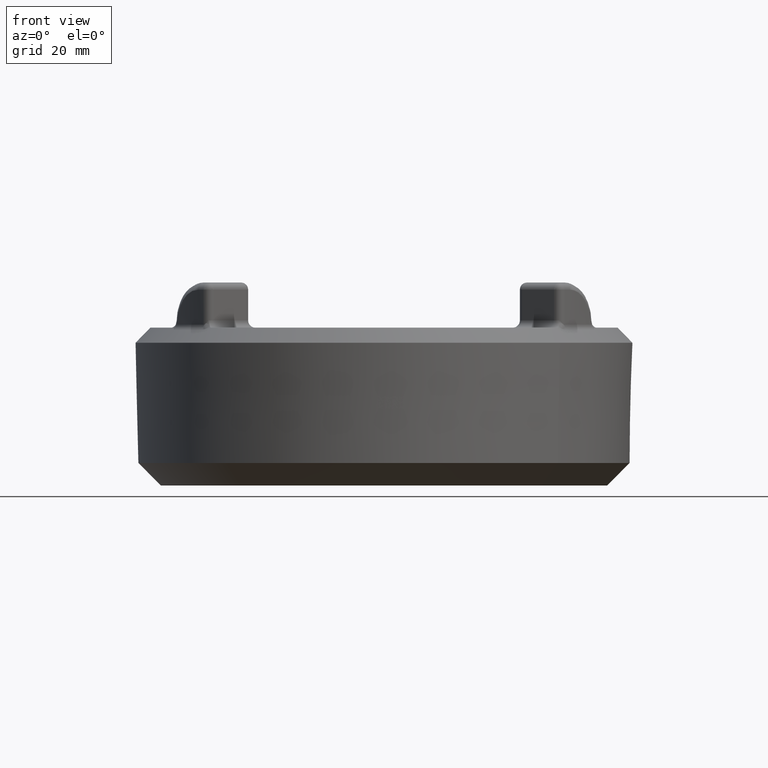
[diagram: clean part render]
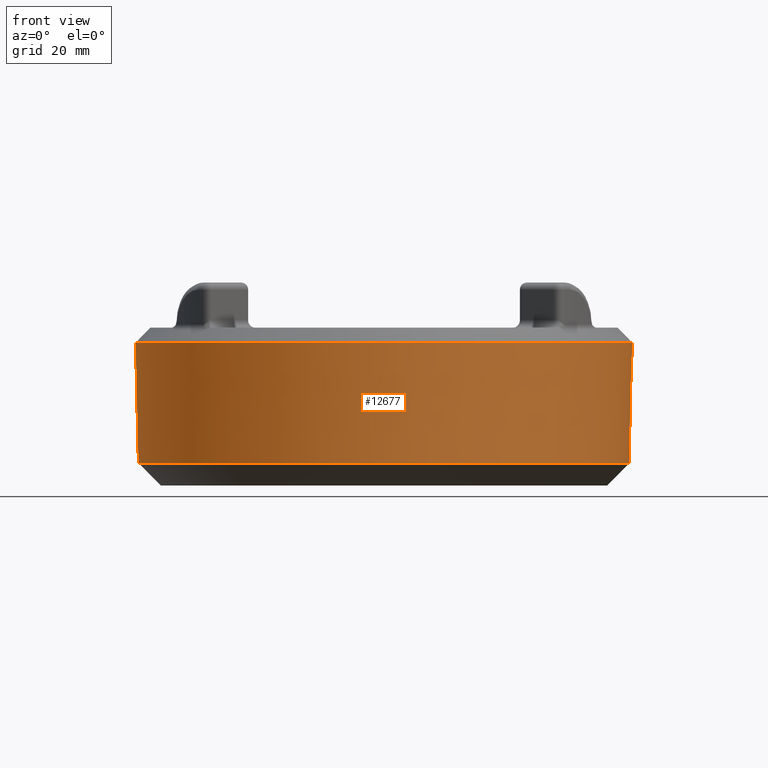
[diagram: same view with one face highlighted and labeled with its STEP entity id]
A machine part, front view. The second image highlights one B-rep face of the part: STEP entity #12677.
In plain terms, the highlighted conical surface has half-angle 1.346 deg.
Its self-contained STEP definition (entity closure, byte-faithful):
#270=CONICAL_SURFACE('',#13509,51.7921875,0.0234919181506614);
#1091=LINE('',#20475,#2456);
#2456=VECTOR('',#14725,51.7921875);
#3467=FACE_OUTER_BOUND('',#4301,.T.);
#4301=EDGE_LOOP('',(#8929,#8930,#8931,#8932,#8933,#8934));
#5124=CIRCLE('',#13503,52.3875);
#5125=CIRCLE('',#13504,52.3875);
#5130=CIRCLE('',#13510,51.7921875);
#5131=CIRCLE('',#13511,51.7921875);
#5765=VERTEX_POINT('',#20176);
#5766=VERTEX_POINT('',#20177);
#5783=VERTEX_POINT('',#20474);
#5784=VERTEX_POINT('',#20476);
#7009=EDGE_CURVE('',#5765,#5766,#5124,.T.);
#7010=EDGE_CURVE('',#5766,#5765,#5125,.T.);
#7032=EDGE_CURVE('',#5766,#5783,#1091,.T.);
#7033=EDGE_CURVE('',#5783,#5784,#5130,.T.);
#7034=EDGE_CURVE('',#5784,#5783,#5131,.T.);
#8929=ORIENTED_EDGE('',*,*,#7009,.F.);
#8930=ORIENTED_EDGE('',*,*,#7010,.F.);
#8931=ORIENTED_EDGE('',*,*,#7032,.T.);
#8932=ORIENTED_EDGE('',*,*,#7033,.T.);
#8933=ORIENTED_EDGE('',*,*,#7034,.T.);
#8934=ORIENTED_EDGE('',*,*,#7032,.F.);
#12677=ADVANCED_FACE('',(#3467),#270,.T.);
#13503=AXIS2_PLACEMENT_3D('',#20178,#14710,#14711);
#13504=AXIS2_PLACEMENT_3D('',#20179,#14712,#14713);
#13509=AXIS2_PLACEMENT_3D('',#20473,#14723,#14724);
#13510=AXIS2_PLACEMENT_3D('',#20477,#14726,#14727);
#13511=AXIS2_PLACEMENT_3D('',#20478,#14728,#14729);
#14710=DIRECTION('center_axis',(-4.41326328510591E-18,3.18431755021861E-16,
1.));
#14711=DIRECTION('ref_axis',(-0.707106781186548,0.707106781186547,-2.28285901717151E-16));
#14712=DIRECTION('center_axis',(-4.41326328510591E-18,3.18431755021861E-16,
1.));
#14713=DIRECTION('ref_axis',(-0.707106781186548,0.707106781186547,-2.28285901717151E-16));
#14723=DIRECTION('center_axis',(-4.41326328510591E-18,3.18431755021861E-16,
1.));
#14724=DIRECTION('ref_axis',(-0.707106781186548,0.707106781186547,-2.28285901717151E-16));
#14725=DIRECTION('',(-0.0166097667897721,0.0166097667897718,-0.999724077580599));
#14726=DIRECTION('center_axis',(-4.41326328510591E-18,3.18431755021861E-16,
1.));
#14727=DIRECTION('ref_axis',(-0.707106781186548,0.707106781186547,-2.28285901717151E-16));
#14728=DIRECTION('center_axis',(-4.41326328510591E-18,3.18431755021861E-16,
1.));
#14729=DIRECTION('ref_axis',(-0.707106781186548,0.707106781186547,-2.28285901717151E-16));
#20176=CARTESIAN_POINT('',(-37.0435564994103,37.0435564994102,11.1353267122275));
#20177=CARTESIAN_POINT('',(37.0435564994103,-37.0435564994102,11.1353267122275));
#20178=CARTESIAN_POINT('Origin',(2.6684829361875E-16,3.22985020555092E-15,
11.1353267122275));
#20179=CARTESIAN_POINT('Origin',(2.6684829361875E-16,3.22985020555092E-15,
11.1353267122275));
#20473=CARTESIAN_POINT('Origin',(3.78664938841836E-16,-4.83809595556045E-15,
-14.2011732877725));
#20474=CARTESIAN_POINT('',(36.6226069937352,-36.6226069937351,-14.2011732877725));
#20475=CARTESIAN_POINT('',(36.6226069937352,-36.6226069937351,-14.2011732877725));
#20476=CARTESIAN_POINT('',(-36.6226069937351,36.6226069937351,-14.2011732877725));
#20477=CARTESIAN_POINT('Origin',(3.78664938841836E-16,-4.83809595556045E-15,
-14.2011732877725));
#20478=CARTESIAN_POINT('Origin',(3.78664938841836E-16,-4.83809595556045E-15,
-14.2011732877725));